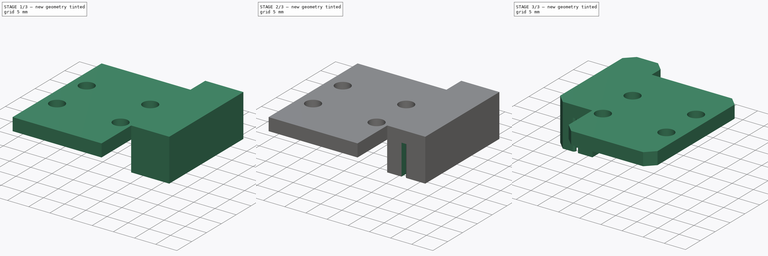
[diagram: build sequence overview — one tinted view per stage of 3, left to right]
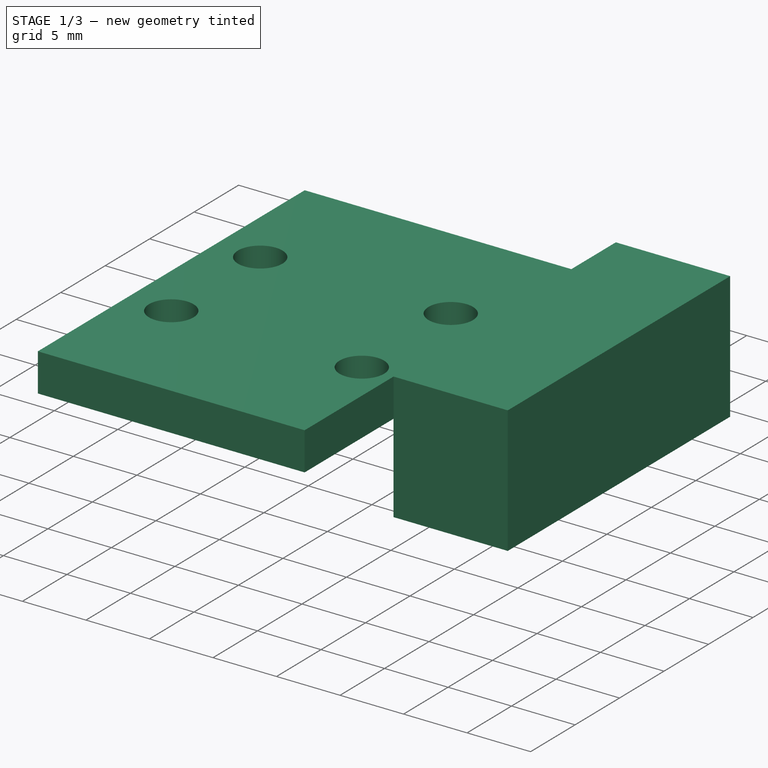
[diagram: stage 1 of 3 — iso view after this stage's code; geometry added in this stage tinted green]
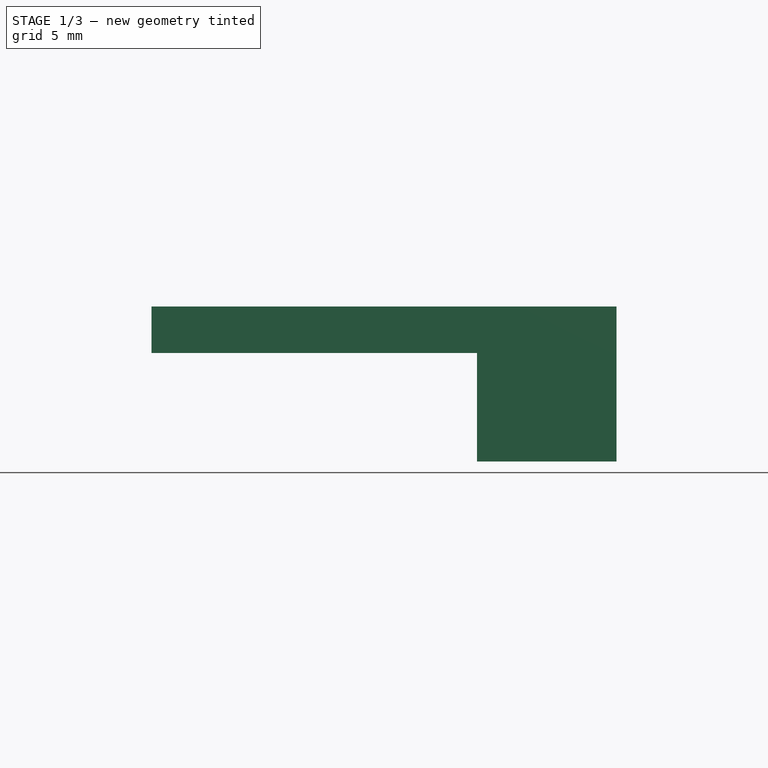
[diagram: stage 1 of 3 — front view after this stage's code; geometry added in this stage tinted green]
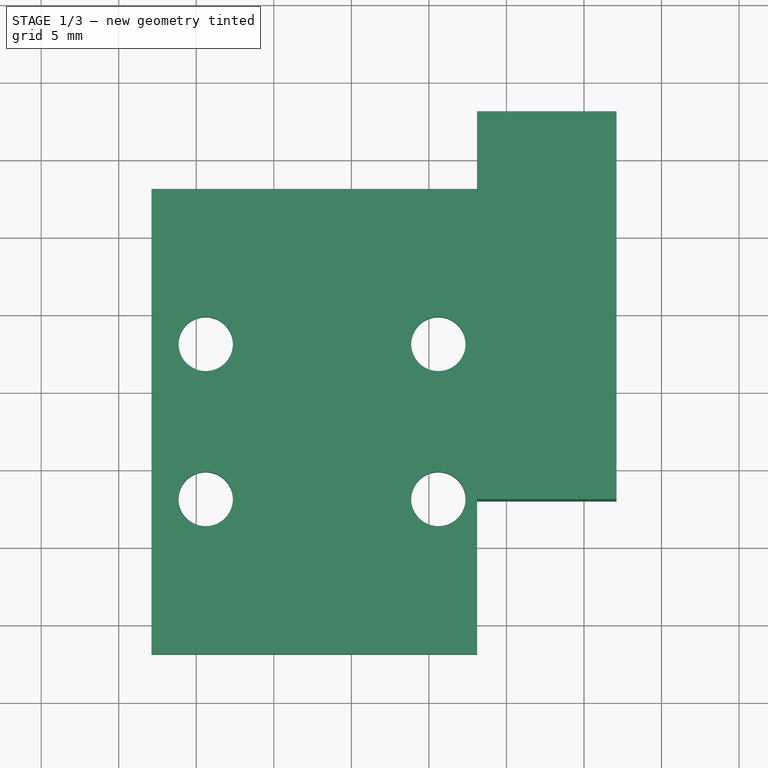
[diagram: stage 1 of 3 — top view after this stage's code; geometry added in this stage tinted green]
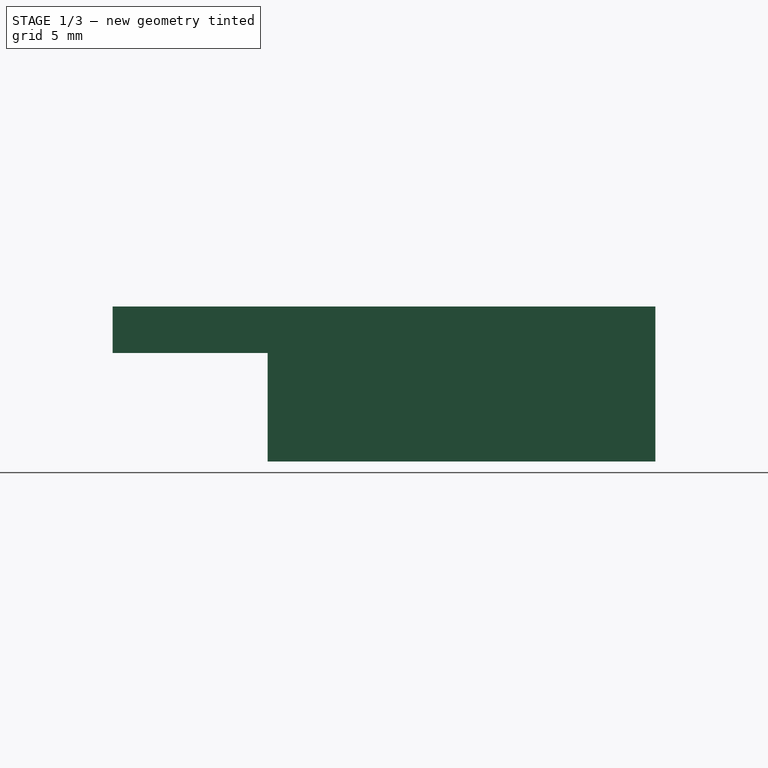
[diagram: stage 1 of 3 — right view after this stage's code; geometry added in this stage tinted green]
FCSTD DOCUMENT  (FreeCAD 0.19R24291 (Git))
Label: FDM-0041_z-gantry-backplate-right
License: All rights reserved
LicenseURL: http://en.wikipedia.org/wiki/All_rights_reserved
objects: Sketcher::SketchObject×3, PartDesign::Plane×3, PartDesign::Pad×2, PartDesign::Pocket×2, Part::Part2DObjectPython×1, PartDesign::Chamfer×1, PartDesign::Body×1, Part::Mirroring×1
note: 19 computed .brp shape members not serialized (recipe doc carries the construction recipe); baked Part::Feature solids carry a one-line shape summary decoded from their .brp

FEATURE [Sketcher::SketchObject] Sketch
  FullyConstrained = true
  MapMode = 5
  Support = -> [XY_Plane]
  sketch-geometry (15):
    g0: LineSegment StartX=10.61 StartY=38 StartZ=0 EndX=25.61 EndY=38 EndZ=0
    g1: LineSegment StartX=25.61 StartY=38 StartZ=0 EndX=25.61 EndY=28 EndZ=0
    g2: LineSegment StartX=25.61 StartY=28 StartZ=0 EndX=10.61 EndY=28 EndZ=0
    g3: LineSegment StartX=10.61 StartY=28 StartZ=0 EndX=10.61 EndY=38 EndZ=0
    g4: LineSegment StartX=7.11 StartY=48 StartZ=0 EndX=28.11 EndY=48 EndZ=0
    g5: LineSegment StartX=28.2 StartY=18 StartZ=0 EndX=7.11 EndY=18 EndZ=0
    g6: LineSegment StartX=7.11 StartY=18 StartZ=0 EndX=7.11 EndY=48 EndZ=0
    g7: Circle CenterX=10.61 CenterY=38 CenterZ=0 NormalX=0 NormalY=0 NormalZ=1 AngleXU=0 Radius=1.75
    g8: Circle CenterX=25.61 CenterY=38 CenterZ=0 NormalX=0 NormalY=0 NormalZ=1 AngleXU=0 Radius=1.75
    g9: Circle CenterX=25.61 CenterY=28 CenterZ=0 NormalX=0 NormalY=0 NormalZ=1 AngleXU=0 Radius=1.75
    g10: Circle CenterX=10.61 CenterY=28 CenterZ=0 NormalX=0 NormalY=0 NormalZ=1 AngleXU=0 Radius=1.75
    g11: LineSegment StartX=28.11 StartY=48 StartZ=0 EndX=7.11 EndY=48 EndZ=0
    g12: LineSegment StartX=7.11 StartY=48 StartZ=0 EndX=7.11 EndY=18 EndZ=0
    g13: LineSegment StartX=7.11 StartY=18 StartZ=0 EndX=28.11 EndY=18 EndZ=0
    g14: LineSegment StartX=28.11 StartY=18 StartZ=0 EndX=28.11 EndY=48 EndZ=0
  constraints (39):
    c: Coincident(g0,g1)
    c: Coincident(g1,g2)
    c: Coincident(g2,g3)
    c: Coincident(g3,g0)
    c: Horizontal(g0)
    c: Horizontal(g2)
    c: Vertical(g1)
    c: Vertical(g3)
    c: DistanceX(g0,g0) = 15
    c: DistanceY(g1,g1) = 10
    c: Coincident(g5,g6)
    c: Coincident(g6,g4)
    c: Horizontal(g5)
    c: DistanceY(g5,g4) = 30
    c: Coincident(g7,g0)
    c: Coincident(g8,g0)
    c: Coincident(g9,g1)
    c: Coincident(g10,g2)
    c: Diameter(g10) = 3.5
    c: Distance(g5,g-2) = 28.2
    c: Coincident(g11,g4)
    c: Coincident(g12,g11)
    c: Coincident(g12,g5)
    c: Coincident(g13,g12)
    c: Coincident(g14,g13)
    c: Vertical(g14)
    c: Equal(g9,g10)
    c: Equal(g10,g7)
    c: Equal(g7,g8)
    c: Equal(g11,g13)
    c: Horizontal(g11)
    c: DistanceX(g11,g11) = 21
    c: DistanceX(g8,g4) = 2.5
    c: DistanceY(g-1,g12) = 18
    c: Vertical(g12)
    c: DistanceX(g-1,g11) = 7.11
    c: Coincident(g14,g11)
    c: Coincident(g4,g11)
    c: DistanceY(g12,g10) = 10
FEATURE [PartDesign::Pad] Pad
  AllowMultiFace = false
  Direction = (1,1,1)
  Length = 3
  Length2 = 100
  Profile = -> Sketch
  Refine = true
  Type = 0
FEATURE [PartDesign::Plane] DatumPlane
  Length = 76.0195
  MapMode = 5
  Placement = pos=(0,0,3) rot=(0,0,1;0rad)
  ResizeMode = 0
  Support = -> [Pad]
  Width = 91.9195
FEATURE [Sketcher::SketchObject] Sketch002
  FullyConstrained = true
  MapMode = 5
  Placement = pos=(0,0,3) rot=(0,0,1;0rad)
  Support = -> [DatumPlane]
  sketch-geometry (4):
    g0: LineSegment StartX=37.1 StartY=53 StartZ=0 EndX=28.1 EndY=53 EndZ=0
    g1: LineSegment StartX=28.1 StartY=53 StartZ=0 EndX=28.1 EndY=28 EndZ=0
    g2: LineSegment StartX=28.1 StartY=28 StartZ=0 EndX=37.1 EndY=28 EndZ=0
    g3: LineSegment StartX=37.1 StartY=28 StartZ=0 EndX=37.1 EndY=53 EndZ=0
  constraints (12):
    c: Coincident(g0,g1)
    c: Coincident(g1,g2)
    c: Horizontal(g2)
    c: Coincident(g2,g3)
    c: Coincident(g3,g0)
    c: Vertical(g3)
    c: DistanceY(g3,g3) = 25
    c: Vertical(g1)
    c: Equal(g1,g3)
    c: DistanceX(g0,g0) = 9
    c: DistanceX(g-1,g1) = 28.1
    c: DistanceY(g-1,g1) = 28
FEATURE [PartDesign::Pad] Pad002
  AllowMultiFace = false
  BaseFeature = -> Pad
  Direction = (1,1,1)
  Length = 10
  Length2 = 100
  Profile = -> Sketch002
  Refine = true
  Reversed = true
  Type = 0
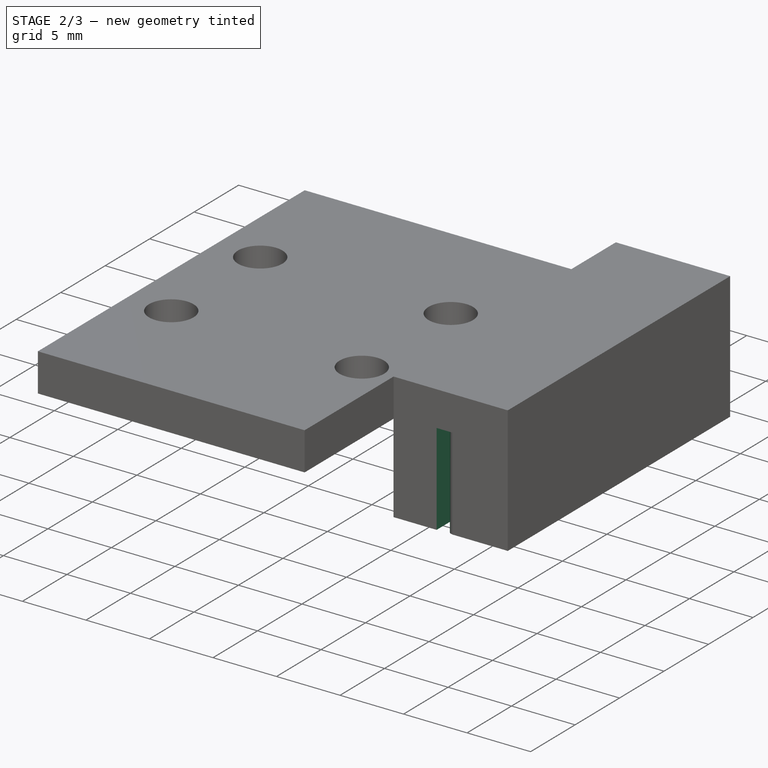
[diagram: stage 2 of 3 — iso view after this stage's code; geometry added in this stage tinted green]
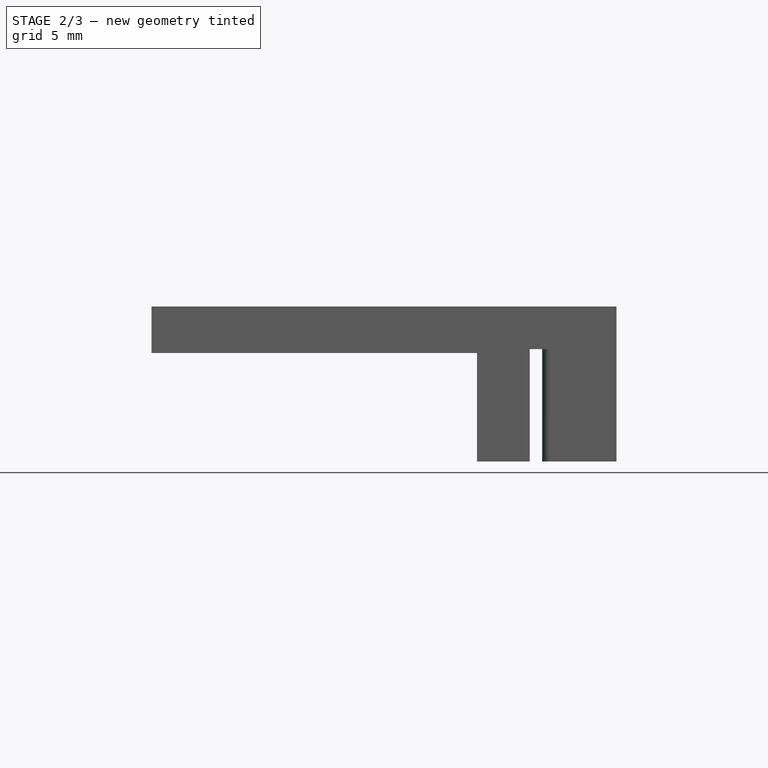
[diagram: stage 2 of 3 — front view after this stage's code; geometry added in this stage tinted green]
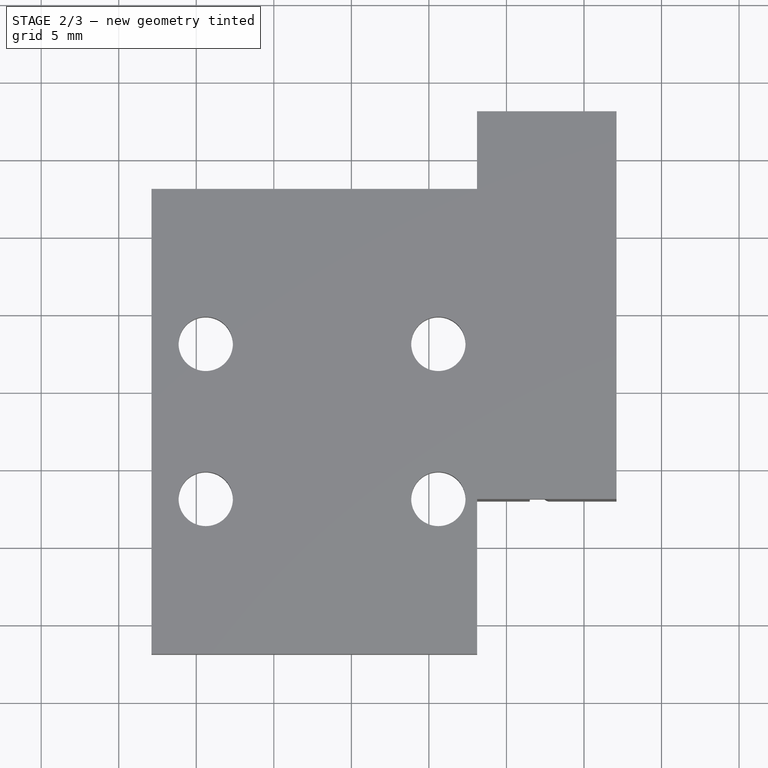
[diagram: stage 2 of 3 — top view after this stage's code; geometry added in this stage tinted green]
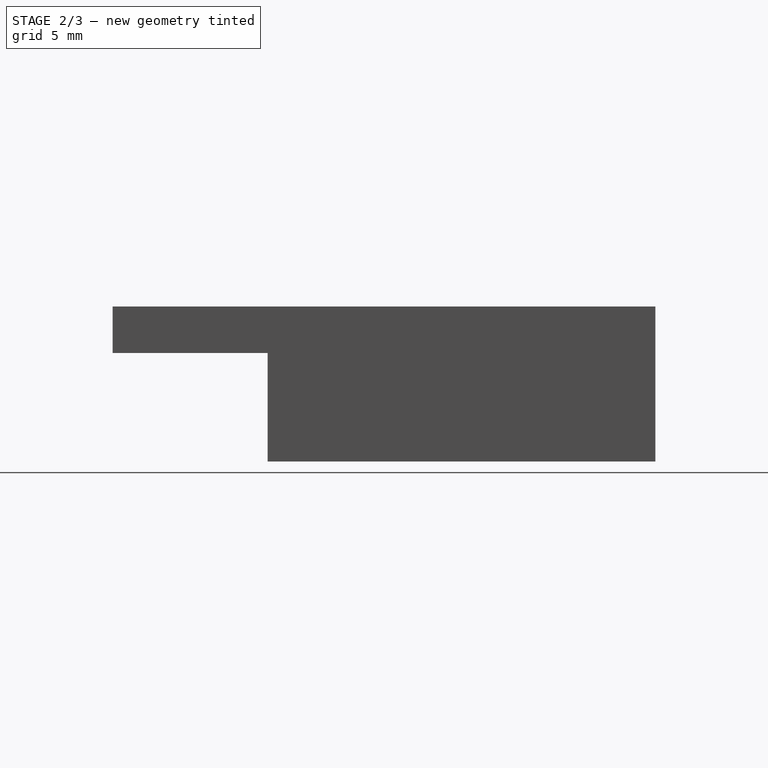
[diagram: stage 2 of 3 — right view after this stage's code; geometry added in this stage tinted green]
FEATURE [Sketcher::SketchObject] Sketch003  label="Teeth"
  AttachmentOffset = pos=(0,-66,0) rot=(0,0,1;0rad)
  FullyConstrained = true
  MapMode = 2
  Placement = pos=(-0.5,10,-7) rot=(0,0,1;0rad)
  sketch-geometry (34):
    g0: LineSegment StartX=33.3 StartY=48 StartZ=0 EndX=32 EndY=48 EndZ=0
    g1: LineSegment StartX=32 StartY=48 StartZ=0 EndX=32 EndY=18 EndZ=0
    g2: LineSegment StartX=32 StartY=18 StartZ=0 EndX=33.3 EndY=18 EndZ=0
    g3: LineSegment StartX=33.3 StartY=48 StartZ=0 EndX=33.3 EndY=18 EndZ=0
    g4: ArcOfCircle CenterX=33.3 CenterY=18.5 CenterZ=0 NormalX=0 NormalY=0 NormalZ=1 AngleXU=0 Radius=0.5 StartAngle=1.5708 EndAngle=4.71239
    g5: ArcOfCircle CenterX=33.3 CenterY=19.5 CenterZ=0 NormalX=0 NormalY=0 NormalZ=1 AngleXU=0 Radius=0.5 StartAngle=4.71239 EndAngle=7.85398
    g6: ArcOfCircle CenterX=33.3 CenterY=20.5 CenterZ=0 NormalX=0 NormalY=0 NormalZ=1 AngleXU=0 Radius=0.5 StartAngle=1.5708 EndAngle=4.71239
    g7: ArcOfCircle CenterX=33.3 CenterY=21.5 CenterZ=0 NormalX=0 NormalY=0 NormalZ=1 AngleXU=0 Radius=0.5 StartAngle=4.71239 EndAngle=7.85398
    g8: ArcOfCircle CenterX=33.3 CenterY=22.5 CenterZ=0 NormalX=0 NormalY=0 NormalZ=1 AngleXU=0 Radius=0.5 StartAngle=1.5708 EndAngle=4.71239
    g9: ArcOfCircle CenterX=33.3 CenterY=23.5 CenterZ=0 NormalX=0 NormalY=0 NormalZ=1 AngleXU=0 Radius=0.5 StartAngle=4.71239 EndAngle=7.85398
    g10: ArcOfCircle CenterX=33.3 CenterY=24.5 CenterZ=0 NormalX=0 NormalY=0 NormalZ=1 AngleXU=0 Radius=0.5 StartAngle=1.5708 EndAngle=4.71239
    g11: ArcOfCircle CenterX=33.3 CenterY=25.5 CenterZ=0 NormalX=0 NormalY=0 NormalZ=1 AngleXU=0 Radius=0.5 StartAngle=4.71239 EndAngle=7.85398
    g12: ArcOfCircle CenterX=33.3 CenterY=26.5 CenterZ=0 NormalX=0 NormalY=0 NormalZ=1 AngleXU=0 Radius=0.5 StartAngle=1.5708 EndAngle=4.71239
    g13: ArcOfCircle CenterX=33.3 CenterY=27.5 CenterZ=0 NormalX=0 NormalY=0 NormalZ=1 AngleXU=0 Radius=0.5 StartAngle=4.71239 EndAngle=7.85398
    g14: ArcOfCircle CenterX=33.3 CenterY=28.5 CenterZ=0 NormalX=0 NormalY=0 NormalZ=1 AngleXU=0 Radius=0.5 StartAngle=1.5708 EndAngle=4.71239
    g15: ArcOfCircle CenterX=33.3 CenterY=29.5 CenterZ=0 NormalX=0 NormalY=0 NormalZ=1 AngleXU=0 Radius=0.5 StartAngle=4.71239 EndAngle=7.85398
    g16: ArcOfCircle CenterX=33.3 CenterY=30.5 CenterZ=0 NormalX=0 NormalY=0 NormalZ=1 AngleXU=0 Radius=0.5 StartAngle=1.5708 EndAngle=4.71239
    g17: ArcOfCircle CenterX=33.3 CenterY=31.5 CenterZ=0 NormalX=0 NormalY=0 NormalZ=1 AngleXU=0 Radius=0.5 StartAngle=4.71239 EndAngle=7.85398
    g18: ArcOfCircle CenterX=33.3 CenterY=32.5 CenterZ=0 NormalX=0 NormalY=0 NormalZ=1 AngleXU=0 Radius=0.5 StartAngle=1.5708 EndAngle=4.71239
    g19: ArcOfCircle CenterX=33.3 CenterY=33.5 CenterZ=0 NormalX=0 NormalY=0 NormalZ=1 AngleXU=0 Radius=0.5 StartAngle=4.71239 EndAngle=7.85398
    g20: ArcOfCircle CenterX=33.3 CenterY=34.5 CenterZ=0 NormalX=0 NormalY=0 NormalZ=1 AngleXU=0 Radius=0.5 StartAngle=1.5708 EndAngle=4.71239
    g21: ArcOfCircle CenterX=33.3 CenterY=35.5 CenterZ=0 NormalX=0 NormalY=0 NormalZ=1 AngleXU=0 Radius=0.5 StartAngle=4.71239 EndAngle=7.85398
    g22: ArcOfCircle CenterX=33.3 CenterY=36.5 CenterZ=0 NormalX=0 NormalY=0 NormalZ=1 AngleXU=0 Radius=0.5 StartAngle=1.5708 EndAngle=4.71239
    g23: ArcOfCircle CenterX=33.3 CenterY=37.5 CenterZ=0 NormalX=0 NormalY=0 NormalZ=1 AngleXU=0 Radius=0.5 StartAngle=4.71239 EndAngle=7.85398
    g24: ArcOfCircle CenterX=33.3 CenterY=38.5 CenterZ=0 NormalX=0 NormalY=0 NormalZ=1 AngleXU=0 Radius=0.5 StartAngle=1.5708 EndAngle=4.71239
    g25: ArcOfCircle CenterX=33.3 CenterY=39.5 CenterZ=0 NormalX=0 NormalY=0 NormalZ=1 AngleXU=0 Radius=0.5 StartAngle=4.71239 EndAngle=7.85398
    g26: ArcOfCircle CenterX=33.3 CenterY=40.5 CenterZ=0 NormalX=0 NormalY=0 NormalZ=1 AngleXU=0 Radius=0.5 StartAngle=1.5708 EndAngle=4.71239
    g27: ArcOfCircle CenterX=33.3 CenterY=41.5 CenterZ=0 NormalX=0 NormalY=0 NormalZ=1 AngleXU=0 Radius=0.5 StartAngle=4.71239 EndAngle=7.85398
    g28: ArcOfCircle CenterX=33.3 CenterY=42.5 CenterZ=0 NormalX=0 NormalY=0 NormalZ=1 AngleXU=0 Radius=0.5 StartAngle=1.5708 EndAngle=4.71239
    g29: ArcOfCircle CenterX=33.3 CenterY=43.5 CenterZ=0 NormalX=0 NormalY=0 NormalZ=1 AngleXU=0 Radius=0.5 StartAngle=4.71239 EndAngle=7.85398
    g30: ArcOfCircle CenterX=33.3 CenterY=44.5 CenterZ=0 NormalX=0 NormalY=0 NormalZ=1 AngleXU=0 Radius=0.5 StartAngle=1.5708 EndAngle=4.71239
    g31: ArcOfCircle CenterX=33.3 CenterY=45.5 CenterZ=0 NormalX=0 NormalY=0 NormalZ=1 AngleXU=0 Radius=0.5 StartAngle=4.71239 EndAngle=7.85398
    g32: ArcOfCircle CenterX=33.3 CenterY=46.5 CenterZ=0 NormalX=0 NormalY=0 NormalZ=1 AngleXU=0 Radius=0.5 StartAngle=1.5708 EndAngle=4.71239
    g33: ArcOfCircle CenterX=33.3 CenterY=47.5 CenterZ=0 NormalX=0 NormalY=0 NormalZ=1 AngleXU=0 Radius=0.5 StartAngle=4.71239 EndAngle=7.85398
  constraints (131):
    c: Coincident(g0,g1)
    c: Vertical(g1)
    c: Coincident(g1,g2)
    c: Coincident(g3,g0)
    c: Coincident(g3,g2)
    c: Vertical(g3)
    c: PointOnObject(g4,g3)
    c: Coincident(g4,g2)
    c: PointOnObject(g4,g3)
    c: PointOnObject(g5,g3)
    c: Coincident(g5,g4)
    c: PointOnObject(g5,g3)
    c: Diameter(g5) = 1
    c: Diameter(g4) = 1
    c: PointOnObject(g6,g3)
    c: Coincident(g6,g5)
    c: PointOnObject(g6,g3)
    c: PointOnObject(g7,g3)
    c: Coincident(g7,g6)
    c: PointOnObject(g7,g3)
    c: PointOnObject(g8,g3)
    c: Coincident(g8,g7)
    c: PointOnObject(g8,g3)
    c: PointOnObject(g9,g3)
    c: Coincident(g9,g8)
    c: PointOnObject(g9,g3)
    c: PointOnObject(g10,g3)
    c: Coincident(g10,g9)
    c: PointOnObject(g10,g3)
    c: PointOnObject(g11,g3)
    c: Coincident(g11,g10)
    c: PointOnObject(g11,g3)
    c: PointOnObject(g12,g3)
    c: Coincident(g12,g11)
    c: PointOnObject(g12,g3)
    c: PointOnObject(g13,g3)
    c: Coincident(g13,g12)
    c: PointOnObject(g13,g3)
    c: PointOnObject(g14,g3)
    c: Coincident(g14,g13)
    c: PointOnObject(g14,g3)
    c: PointOnObject(g15,g3)
    c: Coincident(g15,g14)
    c: PointOnObject(g15,g3)
    c: PointOnObject(g16,g3)
    c: Coincident(g16,g15)
    c: PointOnObject(g16,g3)
    c: PointOnObject(g17,g3)
    c: Coincident(g17,g16)
    c: PointOnObject(g17,g3)
    c: PointOnObject(g18,g3)
    c: Coincident(g18,g17)
    c: PointOnObject(g18,g3)
    c: PointOnObject(g19,g3)
    c: Coincident(g19,g18)
    c: PointOnObject(g19,g3)
    c: PointOnObject(g20,g3)
    c: Coincident(g20,g19)
    c: PointOnObject(g20,g3)
    c: PointOnObject(g21,g3)
    c: Coincident(g21,g20)
    c: PointOnObject(g21,g3)
    c: PointOnObject(g22,g3)
    c: Coincident(g22,g21)
    c: PointOnObject(g22,g3)
    c: PointOnObject(g23,g3)
    c: Coincident(g23,g22)
    c: PointOnObject(g23,g3)
    c: PointOnObject(g24,g3)
    c: Coincident(g24,g23)
    c: PointOnObject(g24,g3)
    c: PointOnObject(g25,g3)
    c: Coincident(g25,g24)
    c: PointOnObject(g25,g3)
    c: PointOnObject(g26,g3)
    c: Coincident(g26,g25)
    c: PointOnObject(g26,g3)
    c: PointOnObject(g27,g3)
    c: Coincident(g27,g26)
    c: PointOnObject(g27,g3)
    c: PointOnObject(g28,g3)
    c: Coincident(g28,g27)
    c: PointOnObject(g28,g3)
    c: PointOnObject(g29,g3)
    c: Coincident(g29,g28)
    c: PointOnObject(g29,g3)
    c: PointOnObject(g30,g3)
    c: Coincident(g30,g29)
    c: PointOnObject(g30,g3)
    c: PointOnObject(g31,g3)
    c: Coincident(g31,g30)
    c: PointOnObject(g31,g3)
    c: PointOnObject(g32,g3)
    c: Coincident(g32,g31)
    c: PointOnObject(g32,g3)
    c: PointOnObject(g33,g3)
    c: Coincident(g33,g32)
    c: Coincident(g33,g0)
    c: Horizontal(g0)
    c: DistanceX(g2,g2) = 1.3
    c: Horizontal(g2)
    c: DistanceX(g-1,g1) = 32
    c: DistanceY(g-1,g1) = 18
    c: Equal(g5,g7)
    c: Equal(g7,g9)
    c: Equal(g9,g11)
    c: Equal(g11,g13)
    c: Equal(g13,g15)
    c: Equal(g15,g17)
    c: Equal(g17,g19)
    c: Equal(g19,g21)
    c: Equal(g21,g23)
    c: Equal(g23,g25)
    c: Equal(g25,g27)
    c: Equal(g27,g29)
    c: Equal(g29,g31)
    c: Equal(g31,g33)
    c: Equal(g32,g30)
    c: Equal(g30,g28)
    c: Equal(g28,g26)
    c: Equal(g26,g24)
    c: Equal(g24,g22)
    c: Equal(g22,g20)
    c: Equal(g20,g18)
    c: Equal(g18,g16)
    c: Equal(g16,g14)
    c: Equal(g14,g12)
    c: Equal(g12,g10)
    c: Equal(g10,g8)
    c: Equal(g8,g6)
    c: Equal(g6,g4)
FEATURE [PartDesign::Pocket] Pocket
  AllowMultiFace = false
  BaseFeature = -> Pad002
  Length = 7.25
  Length2 = 100
  Profile = -> Sketch003
  Refine = true
  Reversed = true
  Type = 0
FEATURE [PartDesign::Plane] DatumPlane002  label="PNPlane"
  Length = 76.0195
  MapMode = 5
  Placement = pos=(0,0,0) rot=(1,0,0;3.14159rad)
  ResizeMode = 0
  Support = -> [Pocket]
  Width = 91.9195
FEATURE [Part::Part2DObjectPython] ShapeString001  label="PN"  # Draft 2D object (typed FeaturePython)
  AttachmentOffset = pos=(17,-20,0) rot=(0,0,1;-1.5708rad)
  FontFile = ../../lib/fonts/RobotoMono-VariableFont_weight.ttf
  MapMode = 2
  Placement = pos=(17,20,0) rot=(-0.707107,-0.707107,0;3.14159rad)
  Size = 3.5
  String = FDM-0041-02
  Support = -> [DatumPlane002]
  Tracking = 0
FEATURE [PartDesign::Pocket] Pocket004
  BaseFeature = -> Pocket
  Length = 0.5
  Length2 = 100
  Profile = -> ShapeString001
  Type = 0
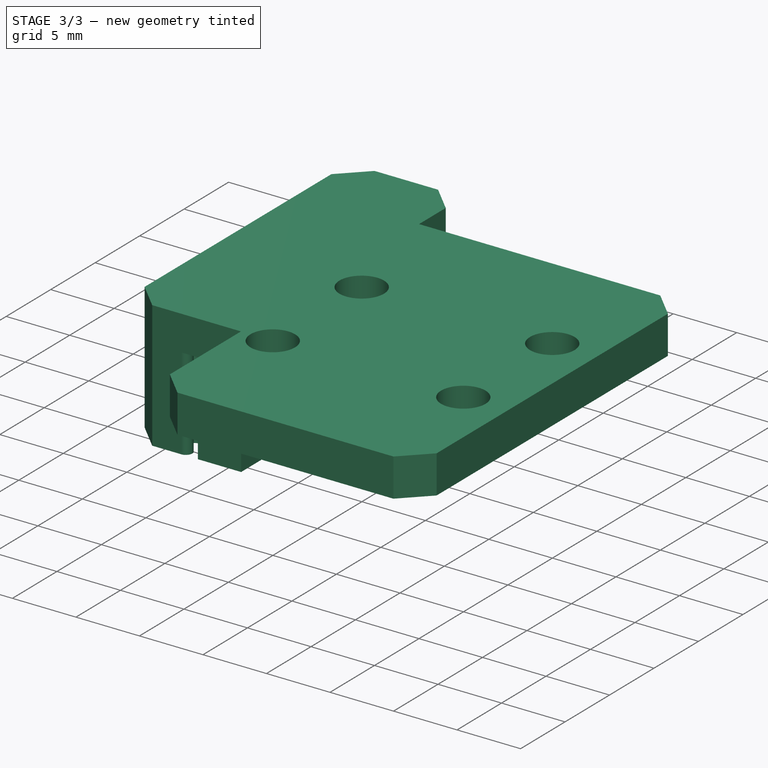
[diagram: stage 3 of 3 — iso view after this stage's code; geometry added in this stage tinted green]
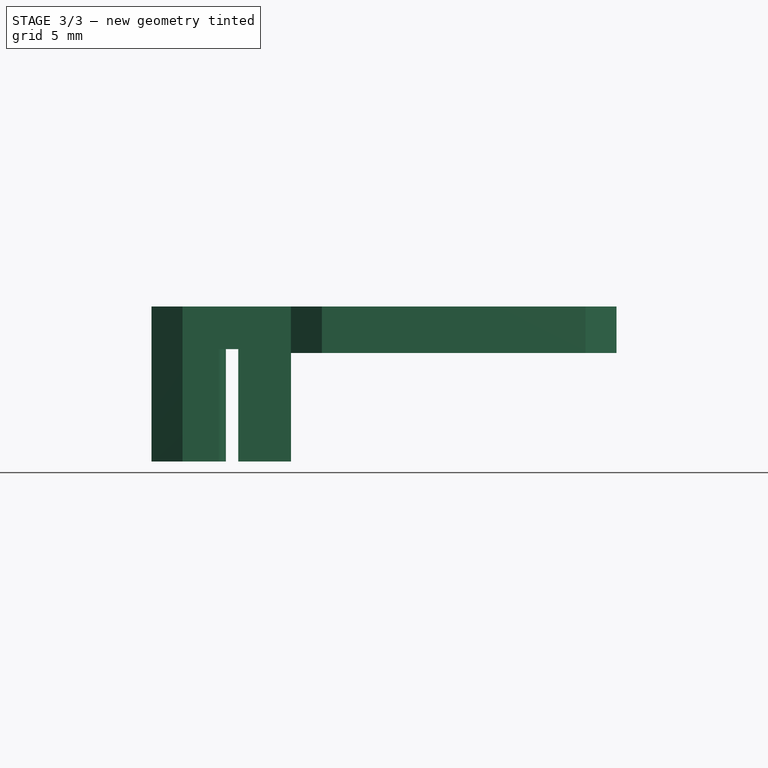
[diagram: stage 3 of 3 — front view after this stage's code; geometry added in this stage tinted green]
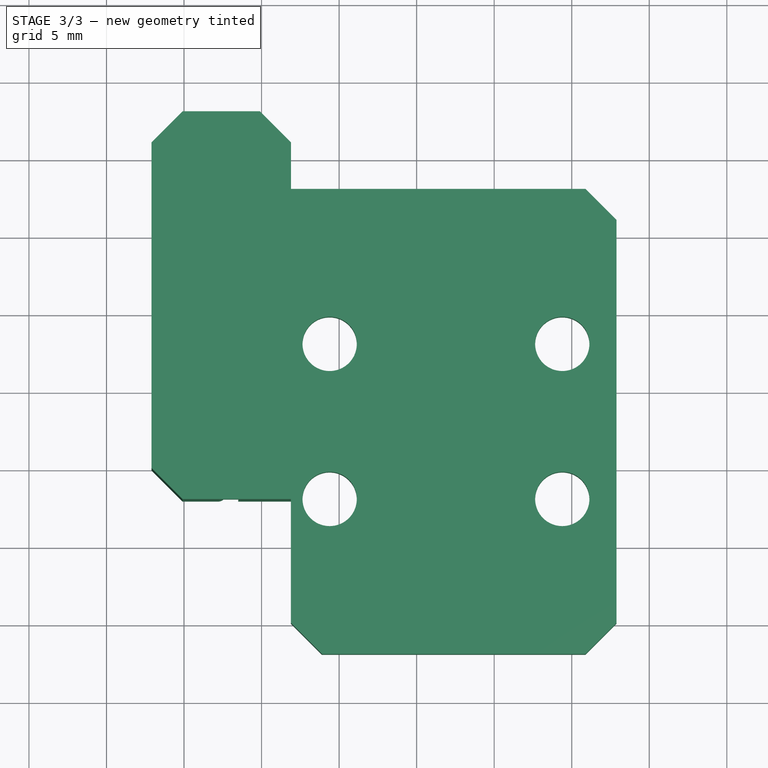
[diagram: stage 3 of 3 — top view after this stage's code; geometry added in this stage tinted green]
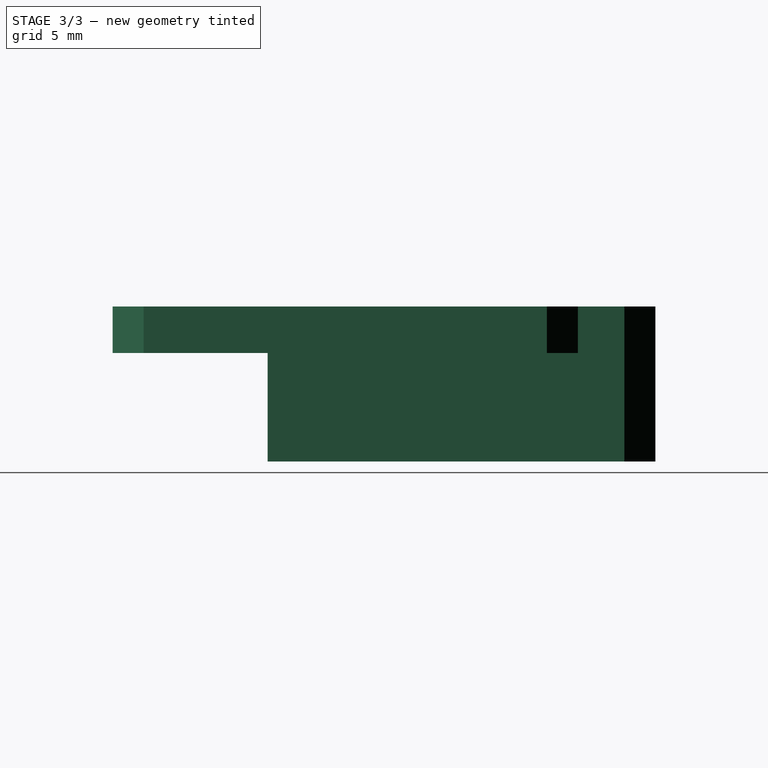
[diagram: stage 3 of 3 — right view after this stage's code; geometry added in this stage tinted green]
FEATURE [PartDesign::Chamfer] Chamfer
  Angle = 45
  Base = -> Pocket004 [Edge2,Edge1,Edge15,Edge248,Edge249,Edge216]
  BaseFeature = -> Pocket004
  ChamferType = 0
  FlipDirection = false
  Size = 2
  Size2 = 1
  SupportTransform = false
FEATURE [PartDesign::Plane] DatumPlane003  label="PrintPlane"
  Length = 76.0195
  MapMode = 5
  Placement = pos=(0,0,3) rot=(0,0,1;0rad)
  ResizeMode = 0
  Support = -> [Chamfer]
  Width = 91.9195
FEATURE [PartDesign::Body] Body  label="inverted-body"
  Group = -> [Sketch,Pad,DatumPlane,Sketch002,Pad002,Sketch003,Pocket,DatumPlane002,DatumPlane003,ShapeString001,Pocket004,Chamfer]
  Origin = -> Origin
  Tip = -> Chamfer
FEATURE [Part::Mirroring] Part__Mirroring  label="Body"
  Base = (0,0,0)
  Normal = (1,0,0)
  Source = -> Body
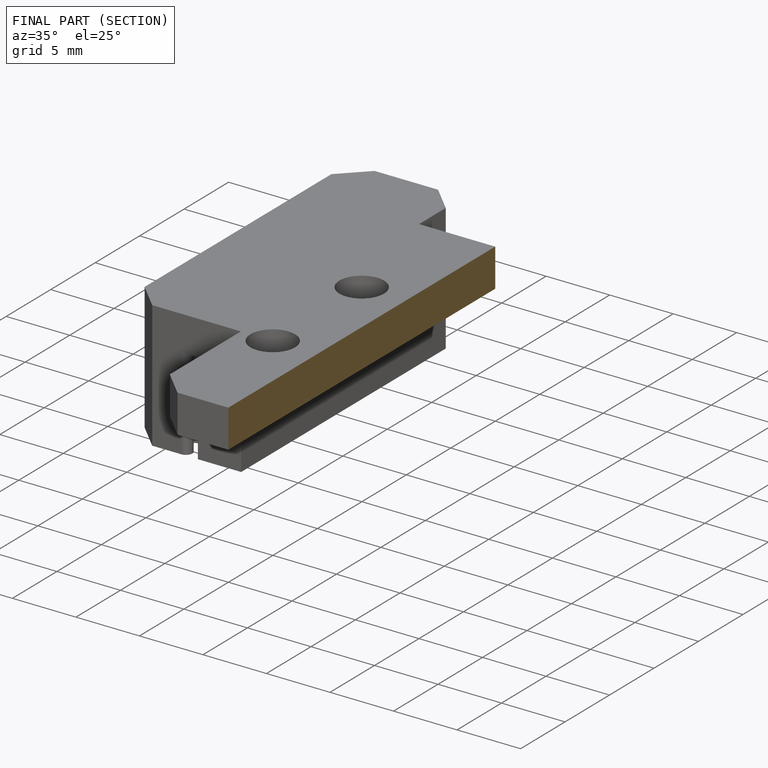
[diagram: finished part — half-section view (interior)]
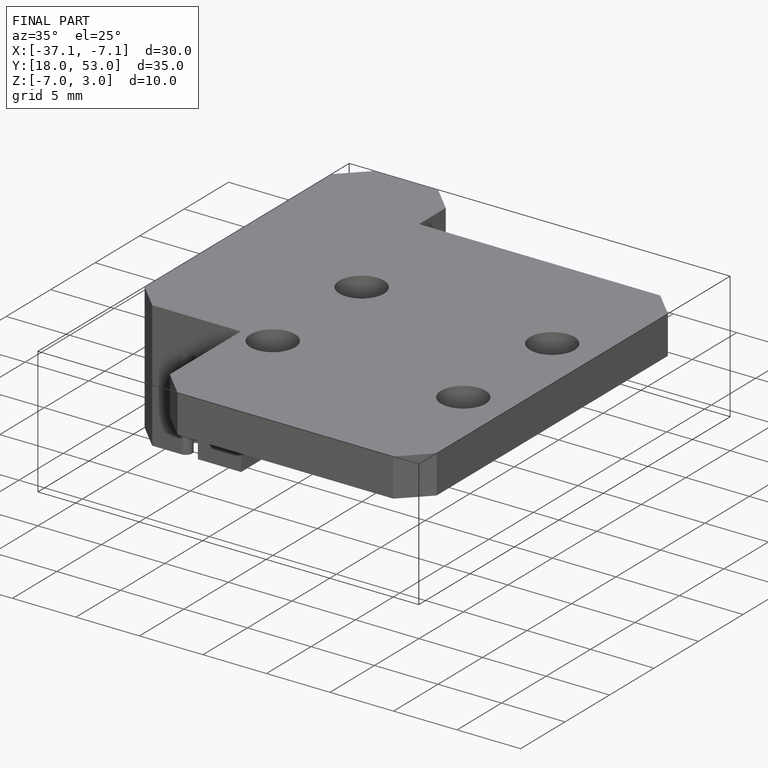
[diagram: finished part — iso view with bounding-box wireframe]
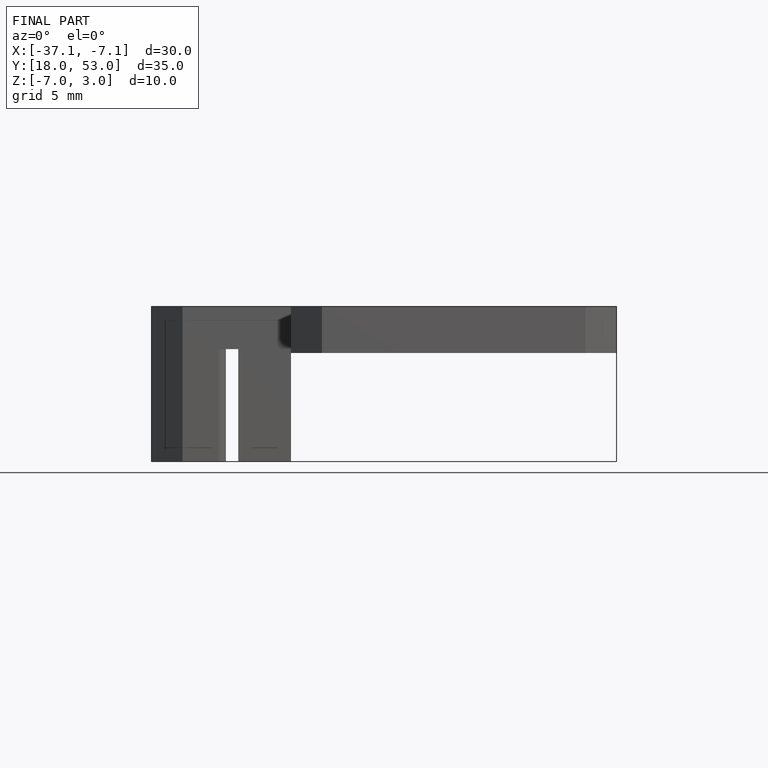
[diagram: finished part — front view with bounding-box wireframe]
